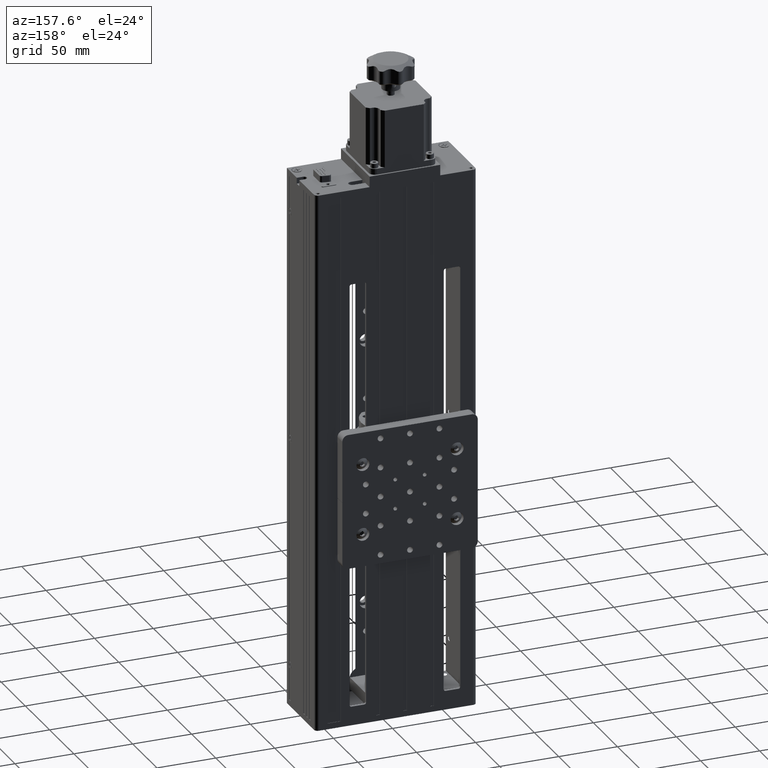
[diagram: clean part render]
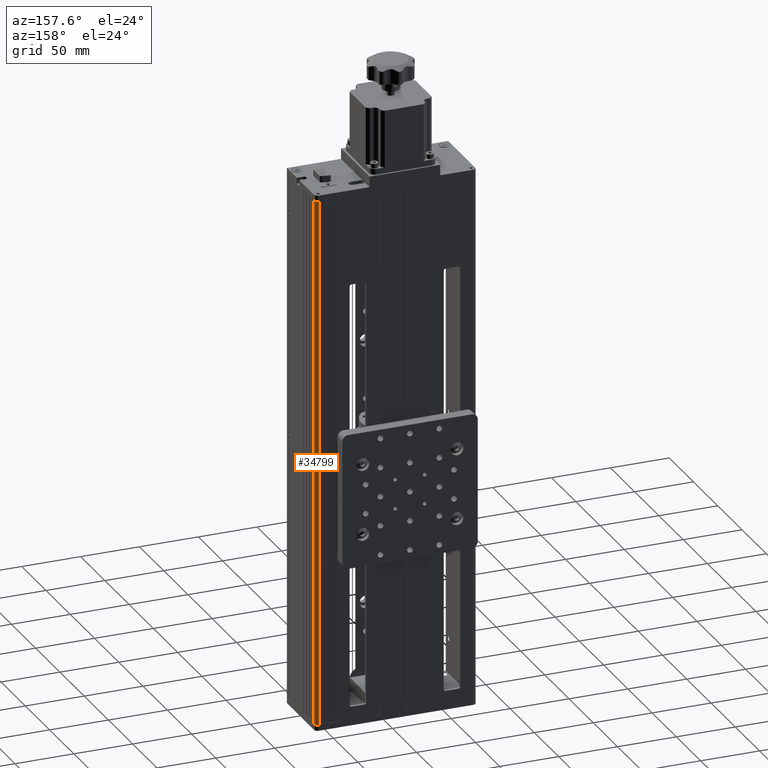
[diagram: same view with one face highlighted and labeled with its STEP entity id]
A machine part, auxiliary view. The second image highlights one B-rep face of the part: STEP entity #34799.
In plain terms, the highlighted cylindrical surface (edge-blend (fillet) strip) has radius 3 mm, axis along (-0, -0, -1).
Its self-contained STEP definition (entity closure, byte-faithful):
#593 = DIRECTION ( 'NONE',  ( 1.000000000000000000, 0.0000000000000000000, 0.0000000000000000000 ) ) ;
#1305 = VERTEX_POINT ( 'NONE', #10779 ) ;
#1585 = CARTESIAN_POINT ( 'NONE',  ( 62.38919164396001800, 47.08234937935211000, 225.0000000000000000 ) ) ;
#1696 = EDGE_CURVE ( 'NONE', #1305, #33052, #22836, .T. ) ;
#6180 = AXIS2_PLACEMENT_3D ( 'NONE', #1585, #11531, #28179 ) ;
#7986 = AXIS2_PLACEMENT_3D ( 'NONE', #35092, #15282, #38409 ) ;
#8020 = DIRECTION ( 'NONE',  ( -0.0000000000000000000, -0.0000000000000000000, -1.000000000000000000 ) ) ;
#10362 = CARTESIAN_POINT ( 'NONE',  ( 65.38919164396001800, 47.08234937935211000, 225.0000000000000000 ) ) ;
#10779 = CARTESIAN_POINT ( 'NONE',  ( 62.38919164396001800, 50.08234937935211000, 225.0000000000000000 ) ) ;
#11531 = DIRECTION ( 'NONE',  ( -0.0000000000000000000, -0.0000000000000000000, -1.000000000000000000 ) ) ;
#13421 = CIRCLE ( 'NONE', #23926, 3.000000000000002700 ) ;
#14069 = VECTOR ( 'NONE', #8020, 1000.000000000000000 ) ;
#14396 = ORIENTED_EDGE ( 'NONE', *, *, #40015, .T. ) ;
#15282 = DIRECTION ( 'NONE',  ( 0.0000000000000000000, 0.0000000000000000000, 1.000000000000000000 ) ) ;
#20358 = DIRECTION ( 'NONE',  ( 0.0000000000000000000, 0.0000000000000000000, 1.000000000000000000 ) ) ;
#21035 = CARTESIAN_POINT ( 'NONE',  ( 62.38919164396001800, 50.08234937935211000, 225.0000000000000000 ) ) ;
#21206 = CARTESIAN_POINT ( 'NONE',  ( 62.38919164396001800, 50.08234937935211000, -225.0000000000000000 ) ) ;
#22800 = CYLINDRICAL_SURFACE ( 'NONE', #6180, 3.000000000000002700 ) ;
#22836 = LINE ( 'NONE', #21035, #14069 ) ;
#23479 = LINE ( 'NONE', #10362, #40076 ) ;
#23926 = AXIS2_PLACEMENT_3D ( 'NONE', #40179, #20358, #593 ) ;
#24200 = ORIENTED_EDGE ( 'NONE', *, *, #28030, .F. ) ;
#25826 = EDGE_CURVE ( 'NONE', #37885, #33052, #13421, .T. ) ;
#26855 = CARTESIAN_POINT ( 'NONE',  ( 65.38919164396001800, 47.08234937935211000, 225.0000000000000000 ) ) ;
#28030 = EDGE_CURVE ( 'NONE', #39997, #1305, #34063, .T. ) ;
#28179 = DIRECTION ( 'NONE',  ( -1.000000000000000000, 0.0000000000000000000, 0.0000000000000000000 ) ) ;
#29651 = EDGE_LOOP ( 'NONE', ( #31241, #39022, #24200, #14396 ) ) ;
#31133 = CARTESIAN_POINT ( 'NONE',  ( 65.38919164396001800, 47.08234937935211000, -225.0000000000000000 ) ) ;
#31241 = ORIENTED_EDGE ( 'NONE', *, *, #25826, .T. ) ;
#33052 = VERTEX_POINT ( 'NONE', #21206 ) ;
#34063 = CIRCLE ( 'NONE', #7986, 3.000000000000002700 ) ;
#34738 = FACE_OUTER_BOUND ( 'NONE', #29651, .T. ) ;
#34799 = ADVANCED_FACE ( 'NONE', ( #34738 ), #22800, .T. ) ;
#35092 = CARTESIAN_POINT ( 'NONE',  ( 62.38919164396001800, 47.08234937935211000, 225.0000000000000000 ) ) ;
#36775 = DIRECTION ( 'NONE',  ( -0.0000000000000000000, -0.0000000000000000000, -1.000000000000000000 ) ) ;
#37885 = VERTEX_POINT ( 'NONE', #31133 ) ;
#38409 = DIRECTION ( 'NONE',  ( 1.000000000000000000, 0.0000000000000000000, 0.0000000000000000000 ) ) ;
#39022 = ORIENTED_EDGE ( 'NONE', *, *, #1696, .F. ) ;
#39997 = VERTEX_POINT ( 'NONE', #26855 ) ;
#40015 = EDGE_CURVE ( 'NONE', #39997, #37885, #23479, .T. ) ;
#40076 = VECTOR ( 'NONE', #36775, 1000.000000000000000 ) ;
#40179 = CARTESIAN_POINT ( 'NONE',  ( 62.38919164396001800, 47.08234937935211000, -225.0000000000000000 ) ) ;